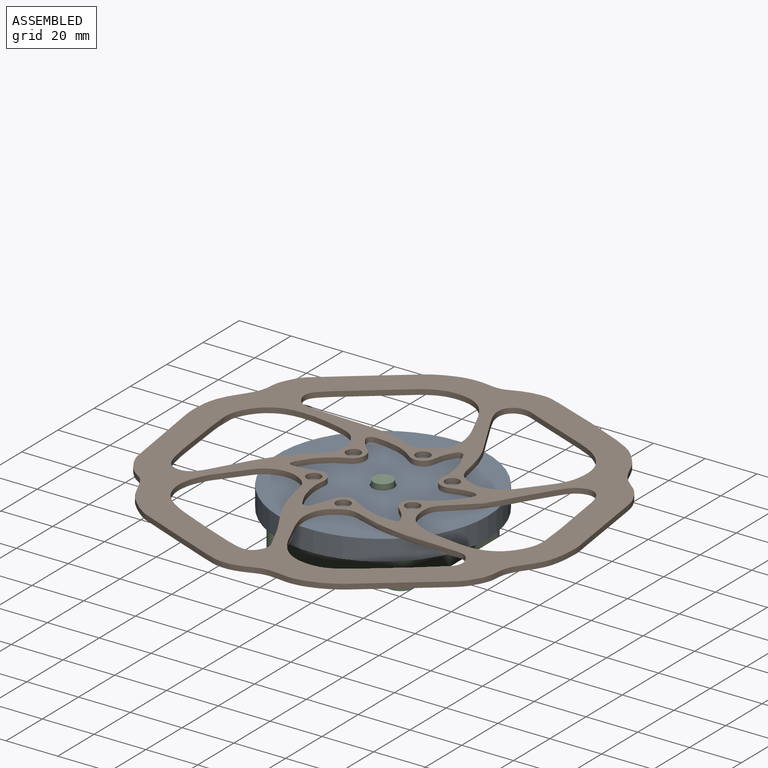
[diagram: assembled view]
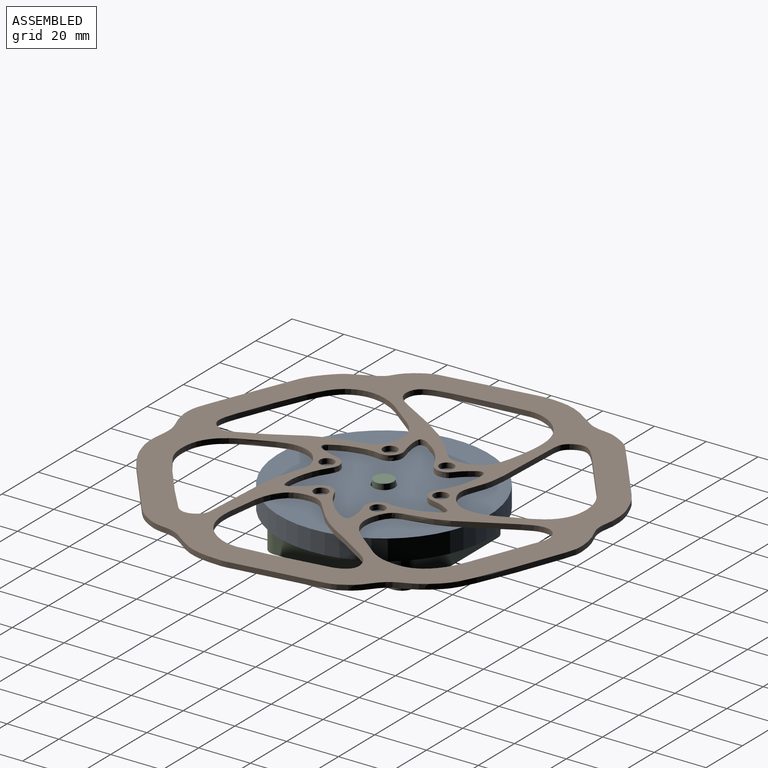
[diagram: assembled view, second angle]
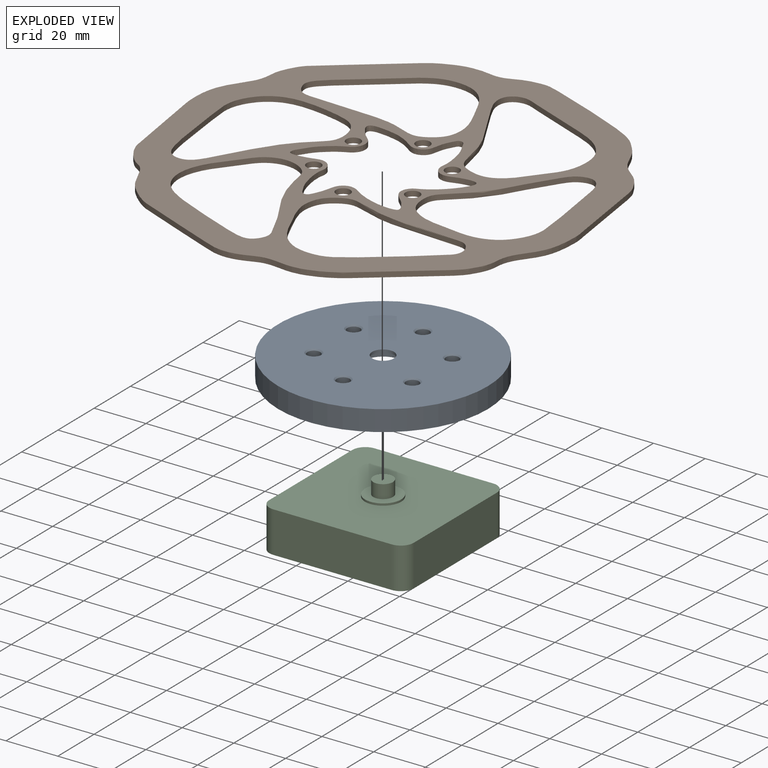
[diagram: exploded view]
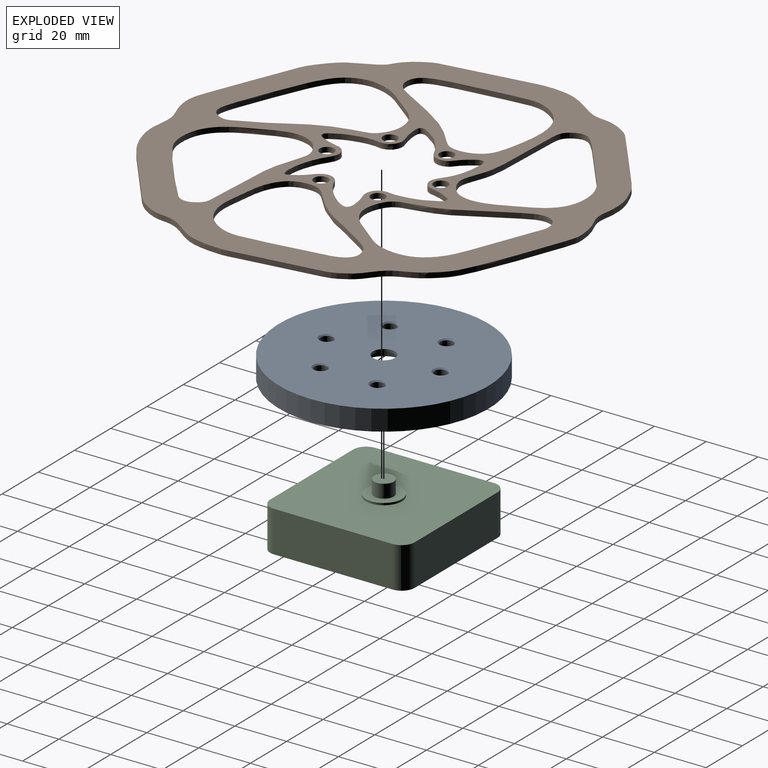
[diagram: exploded view, second angle]
ASSEMBLY  parts=3 mates=4
PART A: 27 faces, bbox 81x81x8 mm
  f0: cylinder r=2.5mm len=5mm, axis (0,0,1), area 55mm2, adj f9,f22
  f1: cylinder r=2.5mm len=5mm, axis (0,0,1), area 55mm2, adj f10,f22
  f2: cylinder r=2.5mm len=5mm, axis (0,0,1), area 55mm2, adj f11,f22
  f3: cylinder r=2.5mm len=5mm, axis (0,0,1), area 55mm2, adj f12,f22
  f4: cylinder r=2.5mm len=5mm, axis (0,0,1), area 55mm2, adj f13,f22
  f5: cylinder r=2.5mm len=5mm, axis (0,0,1), area 55mm2, adj f14,f22
  f6: cylinder r=40.5mm len=81mm, axis (0,0,-1), area 2035.8mm2, adj f7,f8
  f7: plane 81x81mm, normal (0,0,1), area 4926.6mm2, adj f6,f9,f10,f11,f12,f13,f14,f17
  f8: plane 81x81mm, normal (0,0,-1), area 1925.5mm2, adj f6,f18,f19,f20,f21,f23,f24,f25
  f9: cone r=2.5mm half-angle=45deg, axis (0,0,1), area 12.2mm2, adj f0,f7
  f10: cone r=2.5mm half-angle=45deg, axis (0,0,1), area 12.2mm2, adj f1,f7
  f11: cone r=2.5mm half-angle=45deg, axis (0,0,1), area 12.2mm2, adj f2,f7
  f12: cone r=2.5mm half-angle=45deg, axis (0,0,1), area 12.2mm2, adj f3,f7
  f13: cone r=2.5mm half-angle=45deg, axis (0,0,1), area 12.2mm2, adj f4,f7
  f14: cone r=2.5mm half-angle=45deg, axis (0,0,1), area 12.2mm2, adj f5,f7
  f15: cylinder r=7.5mm len=15mm, axis (0,0,-1), area 141.4mm2, adj f16,f22
  f16: plane 15x15mm, normal (0,0,-1), area 120mm2, adj f15,f17
  f17: cylinder r=4.25mm len=8.5mm, axis (0,0,-1), area 26.7mm2, adj f7,f16
  f18: plane 47x4mm, normal (1,0,0), area 188mm2, adj f8,f22,f23,f26
  f19: plane 47x4mm, normal (0,-1,0), area 188mm2, adj f8,f22,f23,f24
  f20: plane 47x4mm, normal (-1,0,0), area 188mm2, adj f8,f22,f24,f25
  f21: plane 47x4mm, normal (0,1,0), area 188mm2, adj f8,f22,f25,f26
  f22: plane 57x57mm, normal (0,0,-1), area 2933mm2, adj f0,f1,f2,f3,f4,f5,f15,f18
  f23: cylinder r=5mm len=5mm, axis (0,0,1), area 31.4mm2, adj f8,f18,f19,f22
  f24: cylinder r=5mm len=5mm, axis (0,0,-1), area 31.4mm2, adj f8,f19,f20,f22
  f25: cylinder r=5mm len=5mm, axis (0,0,1), area 31.4mm2, adj f8,f20,f21,f22
  f26: cylinder r=5mm len=5mm, axis (0,0,-1), area 31.4mm2, adj f8,f18,f21,f22
PART B: 16 faces, bbox 159.6x156.1x2 mm
  f0: extruded ~56.01x45.14mm, area 326.1mm2, adj f14,f15
  f1: extruded ~58.27x45.84mm, area 321.8mm2, adj f14,f15
  f2: cylinder r=2.75mm len=5.5mm, axis (0,0,-1), area 34.6mm2, adj f14,f15
  f3: cylinder r=2.75mm len=5.5mm, axis (0,0,-1), area 34.6mm2, adj f14,f15
  f4: cylinder r=2.75mm len=5.5mm, axis (0,0,-1), area 34.6mm2, adj f14,f15
  f5: extruded ~60.38x42.34mm, area 320.5mm2, adj f14,f15
  f6: extruded ~58.09x46.1mm, area 318.1mm2, adj f14,f15
  f7: extruded ~60.22x41.82mm, area 321.1mm2, adj f14,f15
  f8: extruded ~55.8x45mm, area 323.2mm2, adj f14,f15
  f9: extruded ~62.9x57.15mm, area 512.4mm2, adj f14,f15
  f10: cylinder r=2.75mm len=5.5mm, axis (0,0,-1), area 34.6mm2, adj f14,f15
  f11: cylinder r=2.75mm len=5.5mm, axis (0,0,-1), area 34.6mm2, adj f14,f15
  f12: cylinder r=2.75mm len=5.5mm, axis (0,0,-1), area 34.6mm2, adj f14,f15
  f13: extruded ~157.92x155.43mm, area 990.3mm2, adj f14,f15
  f14: plane 159.59x156.08mm, normal (0,0,1), area 7693.9mm2, adj f0,f1,f2,f3,f4,f5,f6,f7
  f15: plane 159.59x156.08mm, normal (0,0,-1), area 7693.9mm2, adj f0,f1,f2,f3,f4,f5,f6,f7
PART C: 14 faces, bbox 55.8x55.8x21.9 mm
  f0: plane 45.8x15.9mm, normal (0,-1,0), area 728.2mm2, adj f4,f5,f6,f9
  f1: plane 45.8x15.9mm, normal (1,0,0), area 728.2mm2, adj f4,f5,f6,f7
  f2: plane 45.8x15.9mm, normal (0,1,0), area 728.2mm2, adj f4,f5,f7,f8
  f3: plane 45.8x15.9mm, normal (-1,0,0), area 728.2mm2, adj f4,f5,f8,f9
  f4: plane 55.8x55.8mm, normal (0,0,1), area 2938.2mm2, adj f0,f1,f2,f3,f6,f7,f8,f9
  f5: plane 55.8x55.8mm, normal (0,0,-1), area 3092.2mm2, adj f0,f1,f2,f3,f6,f7,f8,f9
  f6: cylinder r=5mm len=15.9mm, axis (0,0,-1), area 124.9mm2, adj f0,f1,f4,f5
  f7: cylinder r=5mm len=15.9mm, axis (0,0,1), area 124.9mm2, adj f1,f2,f4,f5
  f8: cylinder r=5mm len=15.9mm, axis (0,0,-1), area 124.9mm2, adj f2,f3,f4,f5
  f9: cylinder r=5mm len=15.9mm, axis (0,0,1), area 124.9mm2, adj f0,f3,f4,f5
  f10: cylinder r=7mm len=14mm, axis (0,0,-1), area 35.2mm2, adj f4,f11
  f11: plane 14x14mm, normal (0,0,1), area 108.6mm2, adj f10,f13
  f12: plane 7.6x7.6mm, normal (0,0,1), area 45.4mm2, adj f13
  f13: cylinder r=3.8mm len=7.6mm, axis (0,0,-1), area 124.2mm2, adj f11,f12
PLACE A t=(-38.43,68.64,23.31)mm
PLACE B rot(axis=(0,0,-1),21.2deg) t=(-39.29,70.26,31.31)mm
PLACE C t=(-38.43,68.64,11.41)mm
MATE cylindrical C.f10 <-> A.f6  axis (0,0,1) through (-38.43,68.64,28.11)mm
MATE cylindrical B.f10 <-> A.f0  axis (0,0,1) through (-38.43,90.64,33.31)mm
MATE planar B.f15 <-> A.f6  axis (0,0,-1) through (-38.03,68.89,31.31)mm
MATE planar C.f10 <-> A.f1  axis (0,0,1) through (-38.43,68.64,27.31)mm
